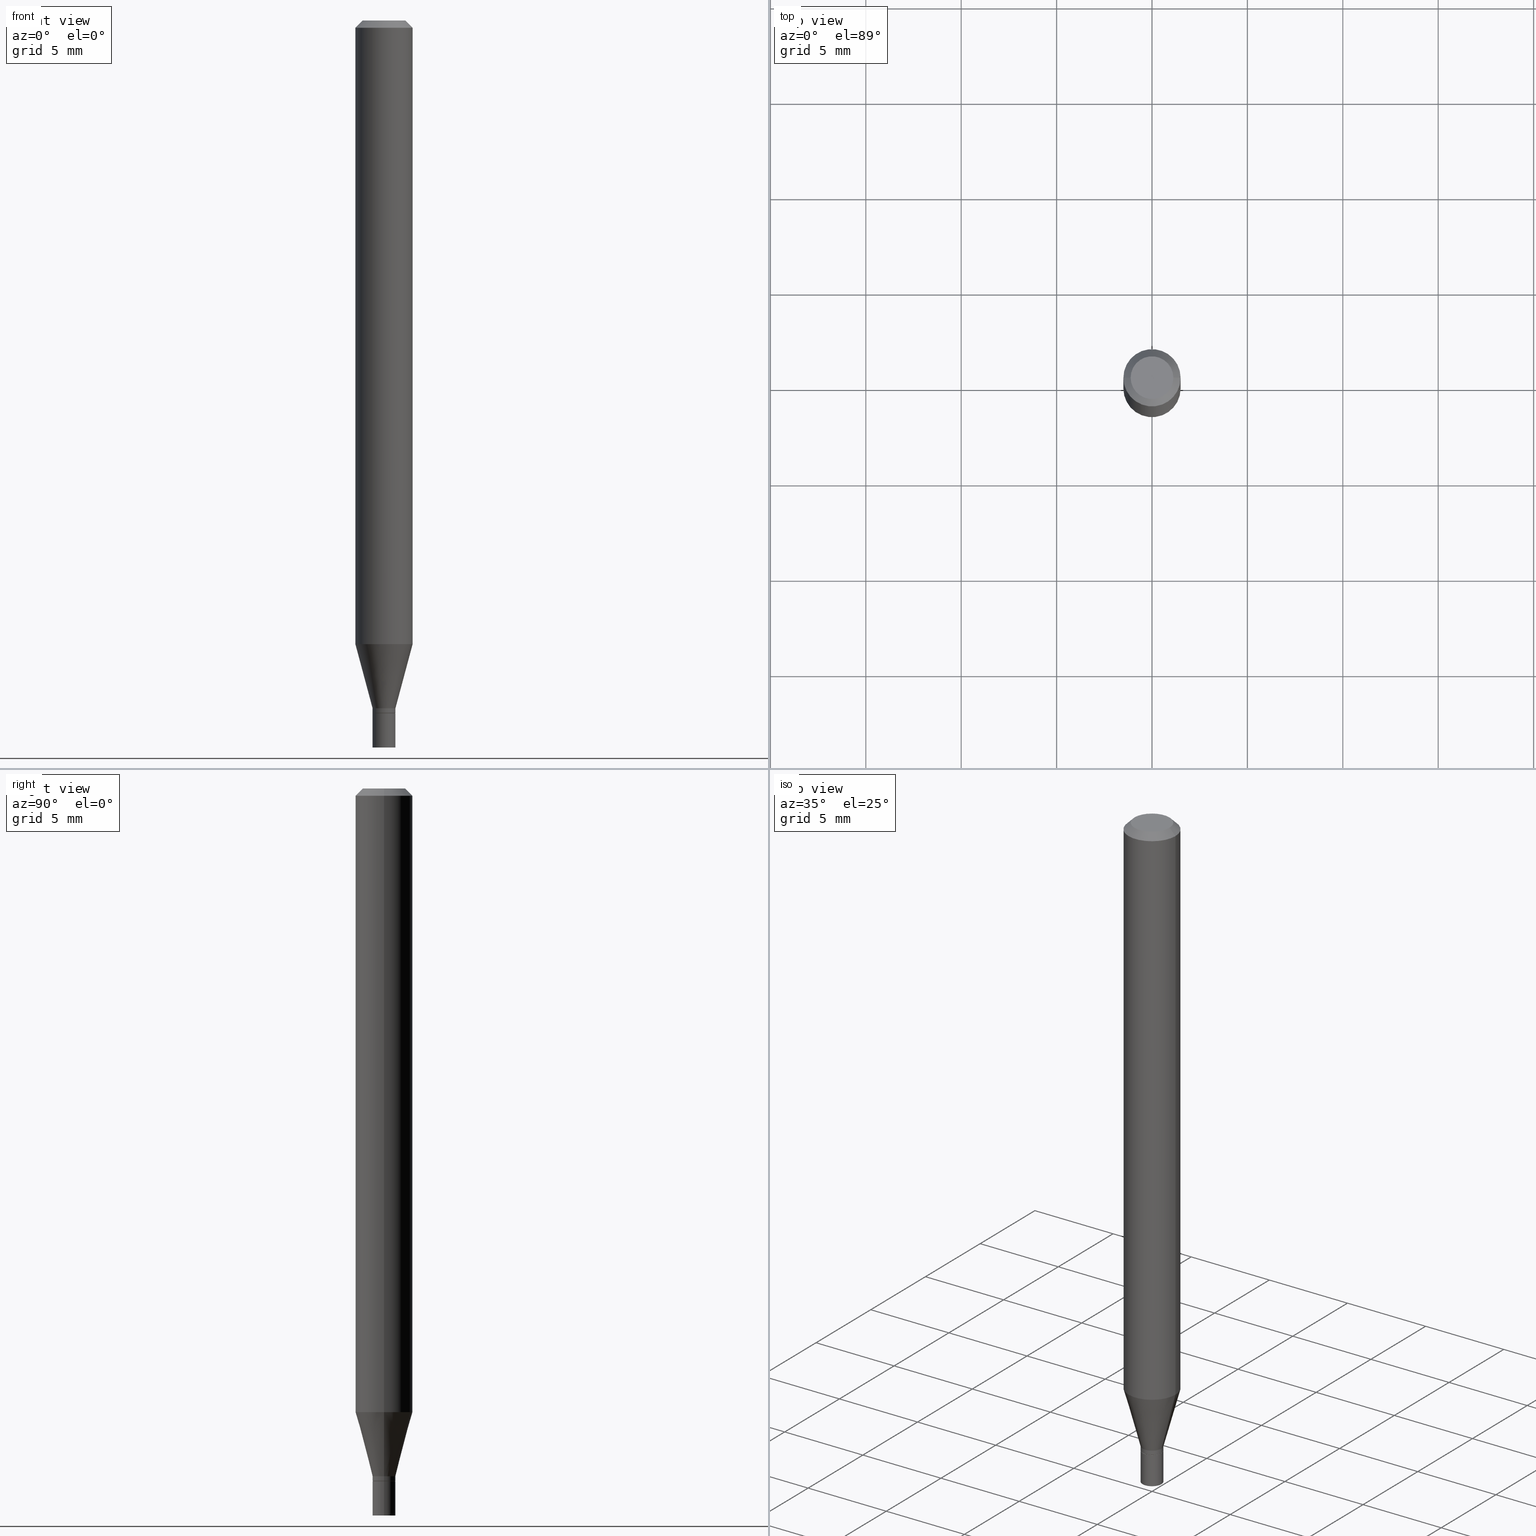
[diagram: canonical four-view strip — front | top / right | iso, engineering-drawing reading convention]
A machine part, canonical four-view strip (front | top / right | iso — engineering-drawing reading convention). The complete STEP part file that produces these views, byte-faithful:
ISO-10303-21;
HEADER;
FILE_DESCRIPTION (( 'STEP AP203' ),
    '1' );
FILE_NAME ('09283.STEP',
    '2024-03-14T18:19:20',
    ( '' ),
    ( '' ),
    'SwSTEP 2.0',
    'SolidWorks 2023',
    '' );
FILE_SCHEMA (( 'CONFIG_CONTROL_DESIGN' ));
ENDSEC;

DATA;
#1 = ORIENTED_EDGE ( 'NONE', *, *, #10, .F. ) ;
#2 = LOCAL_TIME ( 14, 19, 20.00000000000000000, #103 ) ;
#3 = CYLINDRICAL_SURFACE ( 'NONE', #246, 0.05904999999999999832 ) ;
#4 = APPROVAL_ROLE ( '' ) ;
#5 = ADVANCED_FACE ( 'NONE', ( #28 ), #382, .F. ) ;
#6 = CARTESIAN_POINT ( 'NONE',  ( 0.05904999999999999832, -4.647161662000212105E-16, -0.01499999999999999944 ) ) ;
#7 = DIRECTION ( 'NONE',  ( -2.445468806185136597E-29, 3.491481338843145583E-15, 1.000000000000000000 ) ) ;
#8 = ORIENTED_EDGE ( 'NONE', *, *, #137, .T. ) ;
#9 = DIRECTION ( 'NONE',  ( 0.2588190451025211281, 1.565188264969622954E-15, 0.9659258262890679791 ) ) ;
#10 = EDGE_CURVE ( 'NONE', #373, #110, #237, .T. ) ;
#11 = CC_DESIGN_APPROVAL ( #417, ( #275 ) ) ;
#12 = ORIENTED_EDGE ( 'NONE', *, *, #83, .T. ) ;
#13 = DIRECTION ( 'NONE',  ( 1.000000000000000000, -6.982962677686278543E-15, 0.000000000000000000 ) ) ;
#14 = ORIENTED_EDGE ( 'NONE', *, *, #348, .F. ) ;
#15 = DIRECTION ( 'NONE',  ( -1.000000000000000000, 6.982962677686266711E-15, 0.000000000000000000 ) ) ;
#16 = DIRECTION ( 'NONE',  ( 1.000000000000000000, -6.982962677686266711E-15, 4.876176775795936353E-29 ) ) ;
#17 = CARTESIAN_POINT ( 'NONE',  ( -0.04404999999999999888, 3.337856159934028715E-16, -3.279237254660510174E-16 ) ) ;
#18 = DIRECTION ( 'NONE',  ( -2.445468806185136597E-29, 3.491481338843145583E-15, 1.000000000000000000 ) ) ;
#19 = ORIENTED_EDGE ( 'NONE', *, *, #56, .T. ) ;
#20 = APPLICATION_CONTEXT ( 'configuration controlled 3d designs of mechanical parts and assemblies' ) ;
#21 = EDGE_CURVE ( 'NONE', #156, #453, #356, .T. ) ;
#22 = ORIENTED_EDGE ( 'NONE', *, *, #182, .T. ) ;
#23 = CIRCLE ( 'NONE', #357, 0.02360000000000019721 ) ;
#24 = DIRECTION ( 'NONE',  ( 1.000000000000000000, -6.982962677686267499E-15, 4.876176775795936353E-29 ) ) ;
#25 = EDGE_CURVE ( 'NONE', #373, #156, #198, .T. ) ;
#26 = DESIGN_CONTEXT ( 'detailed design', #20, 'design' ) ;
#27 = CARTESIAN_POINT ( 'NONE',  ( 0.05904999999999999832, -4.123439461173740327E-16, 2.879382386107500220E-30 ) ) ;
#28 = FACE_OUTER_BOUND ( 'NONE', #450, .T. ) ;
#29 = PLANE ( 'NONE',  #167 ) ;
#30 = ORIENTED_EDGE ( 'NONE', *, *, #87, .T. ) ;
#31 = UNCERTAINTY_MEASURE_WITH_UNIT (LENGTH_MEASURE( 1.000000000000000082E-05 ), #140, 'distance_accuracy_value', 'NONE');
#32 = DIRECTION ( 'NONE',  ( 0.7071067811865553443, -7.319954787623282867E-15, -0.7071067811865396902 ) ) ;
#33 = ORGANIZATION ( 'UNSPECIFIED', 'UNSPECIFIED', '' ) ;
#34 = CARTESIAN_POINT ( 'NONE',  ( 0.02360000000000019374, -1.647979191933972585E-16, 1.150777719087850414E-30 ) ) ;
#35 = ORIENTED_EDGE ( 'NONE', *, *, #314, .T. ) ;
#36 = DIRECTION ( 'NONE',  ( -2.445468806185136877E-29, 3.491481338843145188E-15, 1.000000000000000000 ) ) ;
#37 = DIRECTION ( 'NONE',  ( -2.445468806185136877E-29, 3.491481338843145188E-15, 1.000000000000000000 ) ) ;
#38 = DIRECTION ( 'NONE',  ( -2.445468806185136597E-29, 3.491481338843145583E-15, 1.000000000000000000 ) ) ;
#39 = CONICAL_SURFACE ( 'NONE', #274, 0.02360000000000019374, 0.2617993877991498519 ) ;
#40 = VECTOR ( 'NONE', #36, 39.37007874015748143 ) ;
#41 = PERSON_AND_ORGANIZATION_ROLE ( 'creator' ) ;
#42 = ADVANCED_FACE ( 'NONE', ( #161 ), #39, .T. ) ;
#43 = CARTESIAN_POINT ( 'NONE',  ( 0.02360000000000019374, -5.119209939011821380E-15, -1.419000000000000039 ) ) ;
#44 = APPROVAL_STATUS ( 'not_yet_approved' ) ;
#45 = DIRECTION ( 'NONE',  ( -2.445468806185136877E-29, 3.491481338843145188E-15, 1.000000000000000000 ) ) ;
#46 = APPROVAL_ROLE ( '' ) ;
#47 = CIRCLE ( 'NONE', #53, 0.04404999999999999888 ) ;
#48 = APPROVAL_PERSON_ORGANIZATION ( #211, #445, #46 ) ;
#49 = CARTESIAN_POINT ( 'NONE',  ( 0.02360000000000000292, -5.402019927458114424E-15, -1.500000000000000222 ) ) ;
#50 = ORIENTED_EDGE ( 'NONE', *, *, #427, .F. ) ;
#51 = ORIENTED_EDGE ( 'NONE', *, *, #21, .T. ) ;
#52 = DIRECTION ( 'NONE',  ( 1.000000000000000000, -6.982962677686273021E-15, 0.000000000000000000 ) ) ;
#53 = AXIS2_PLACEMENT_3D ( 'NONE', #130, #199, #284 ) ;
#54 = AXIS2_PLACEMENT_3D ( 'NONE', #374, #341, #166 ) ;
#55 = EDGE_LOOP ( 'NONE', ( #335, #304, #86, #234 ) ) ;
#56 = EDGE_CURVE ( 'NONE', #162, #405, #202, .T. ) ;
#57 = DATE_AND_TIME ( #230, #380 ) ;
#58 = MANIFOLD_SOLID_BREP ( 'Body-Move/Copy2[2]', #119 ) ;
#59 = ORIENTED_EDGE ( 'NONE', *, *, #21, .F. ) ;
#60 = VECTOR ( 'NONE', #157, 39.37007874015748143 ) ;
#61 = CARTESIAN_POINT ( 'NONE',  ( 8.019272414352406998E-45, -1.144939568028632061E-30, -3.279237254660487495E-16 ) ) ;
#62 = CIRCLE ( 'NONE', #433, 0.02309999999999999901 ) ;
#63 = FACE_OUTER_BOUND ( 'NONE', #286, .T. ) ;
#64 = FACE_OUTER_BOUND ( 'NONE', #173, .T. ) ;
#65 = EDGE_LOOP ( 'NONE', ( #263, #350, #241, #324 ) ) ;
#66 = PRODUCT_DEFINITION ( 'UNKNOWN', '', #275, #26 ) ;
#67 = DIRECTION ( 'NONE',  ( 1.000000000000000000, -6.982962677686265922E-15, 4.819687581474398999E-29 ) ) ;
#68 = EDGE_LOOP ( 'NONE', ( #35, #252, #183, #446 ) ) ;
#69 = EDGE_CURVE ( 'NONE', #421, #405, #147, .T. ) ;
#70 = PERSON_AND_ORGANIZATION_ROLE ( 'design_owner' ) ;
#71 = DIRECTION ( 'NONE',  ( -2.445468806185136597E-29, 3.491481338843145583E-15, 1.000000000000000000 ) ) ;
#72 = VECTOR ( 'NONE', #332, 39.37007874015748854 ) ;
#73 = VECTOR ( 'NONE', #106, 39.37007874015748143 ) ;
#74 = SECURITY_CLASSIFICATION_LEVEL ( 'unclassified' ) ;
#75 = CARTESIAN_POINT ( 'NONE',  ( 0.02360000000000000292, -1.647979191933959273E-16, 1.150777719087840955E-30 ) ) ;
#76 = CARTESIAN_POINT ( 'NONE',  ( 0.04404999999999999888, -3.798447818264465995E-16, -3.279237254660463336E-16 ) ) ;
#77 = EDGE_CURVE ( 'NONE', #159, #398, #294, .T. ) ;
#78 = PERSON_AND_ORGANIZATION ( #298, #33 ) ;
#79 = CARTESIAN_POINT ( 'NONE',  ( -0.05904999999999999832, 4.195754854663391478E-16, -2.904631170795521892E-30 ) ) ;
#80 = PLANE ( 'NONE',  #422 ) ;
#81 = FACE_OUTER_BOUND ( 'NONE', #68, .T. ) ;
#82 = EDGE_LOOP ( 'NONE', ( #430, #309, #308, #94 ) ) ;
#83 = EDGE_CURVE ( 'NONE', #192, #280, #312, .T. ) ;
#84 = ORIENTED_EDGE ( 'NONE', *, *, #414, .T. ) ;
#85 = DIRECTION ( 'NONE',  ( 1.000000000000000000, -6.982962677686258033E-15, 0.000000000000000000 ) ) ;
#86 = ORIENTED_EDGE ( 'NONE', *, *, #87, .F. ) ;
#87 = EDGE_CURVE ( 'NONE', #405, #421, #289, .T. ) ;
#88 = VECTOR ( 'NONE', #216, 39.37007874015748143 ) ;
#89 = CARTESIAN_POINT ( 'NONE',  ( 3.470120235976709172E-29, -4.954412019818423555E-15, -1.419000000000000039 ) ) ;
#90 = DIRECTION ( 'NONE',  ( 1.000000000000000000, -6.982962677686267499E-15, 4.876176775795936353E-29 ) ) ;
#91 = ORIENTED_EDGE ( 'NONE', *, *, #370, .F. ) ;
#92 = ADVANCED_FACE ( 'NONE', ( #402 ), #3, .T. ) ;
#93 = CARTESIAN_POINT ( 'NONE',  ( 3.668203209277704895E-29, -5.237222008264718177E-15, -1.500000000000000222 ) ) ;
#94 = ORIENTED_EDGE ( 'NONE', *, *, #83, .F. ) ;
#95 = DIRECTION ( 'NONE',  ( -2.445468806185136597E-29, 3.491481338843145583E-15, 1.000000000000000000 ) ) ;
#96 = ORIENTED_EDGE ( 'NONE', *, *, #193, .T. ) ;
#97 = CLOSED_SHELL ( 'NONE', ( #98, #5, #296, #376 ) ) ;
#98 = ADVANCED_FACE ( 'NONE', ( #81 ), #180, .T. ) ;
#99 = CARTESIAN_POINT ( 'NONE',  ( 0.000000000000000000, 0.000000000000000000, 0.000000000000000000 ) ) ;
#100 = DIRECTION ( 'NONE',  ( 1.000000000000000000, 0.000000000000000000, 0.000000000000000000 ) ) ;
#101 = ORIENTED_EDGE ( 'NONE', *, *, #77, .F. ) ;
#102 = DIRECTION ( 'NONE',  ( -2.445468806185136597E-29, 3.491481338843145583E-15, 1.000000000000000000 ) ) ;
#103 = COORDINATED_UNIVERSAL_TIME_OFFSET ( 5, 0, .BEHIND. ) ;
#104 = VECTOR ( 'NONE', #114, 39.37007874015748143 ) ;
#105 =( GEOMETRIC_REPRESENTATION_CONTEXT ( 3 ) GLOBAL_UNCERTAINTY_ASSIGNED_CONTEXT ( ( #31 ) ) GLOBAL_UNIT_ASSIGNED_CONTEXT ( ( #140, #256, #465 ) ) REPRESENTATION_CONTEXT ( 'NONE', 'WORKASPACE' ) );
#106 = DIRECTION ( 'NONE',  ( 0.7071067811865656694, -2.468850131082446387E-15, 0.7071067811865294761 ) ) ;
#107 = APPROVAL_STATUS ( 'not_yet_approved' ) ;
#108 = DIRECTION ( 'NONE',  ( 1.000000000000000000, -6.982962677686278543E-15, 0.000000000000000000 ) ) ;
#109 = CALENDAR_DATE ( 2024, 14, 3 ) ;
#110 = VERTEX_POINT ( 'NONE', #17 ) ;
#111 = CC_DESIGN_PERSON_AND_ORGANIZATION_ASSIGNMENT ( #288, #41, ( #275 ) ) ;
#112 = CARTESIAN_POINT ( 'NONE',  ( 0.02360000000000019374, -5.119209939011821380E-15, -1.419000000000000039 ) ) ;
#113 = AXIS2_PLACEMENT_3D ( 'NONE', #99, #170, #100 ) ;
#114 = DIRECTION ( 'NONE',  ( -2.445468806185136877E-29, 3.491481338843145188E-15, 1.000000000000000000 ) ) ;
#115 = ORIENTED_EDGE ( 'NONE', *, *, #193, .F. ) ;
#116 = CARTESIAN_POINT ( 'NONE',  ( 3.668203209277705088E-31, -5.237222008264718399E-17, -0.01499999999999999944 ) ) ;
#117 = APPLICATION_CONTEXT ( 'configuration controlled 3d designs of mechanical parts and assemblies' ) ;
#118 = ORIENTED_EDGE ( 'NONE', *, *, #10, .T. ) ;
#119 = CLOSED_SHELL ( 'NONE', ( #228, #267, #239, #92, #325, #42, #128, #247, #248, #217, #189, #435 ) ) ;
#120 = VECTOR ( 'NONE', #277, 39.37007874015748143 ) ;
#121 = CYLINDRICAL_SURFACE ( 'NONE', #349, 0.02360000000000019374 ) ;
#122 = DIRECTION ( 'NONE',  ( 2.445468806185136597E-29, -3.491481338843145583E-15, -1.000000000000000000 ) ) ;
#123 = CYLINDRICAL_SURFACE ( 'NONE', #134, 0.05904999999999999832 ) ;
#124 = DIRECTION ( 'NONE',  ( -2.445468806185136597E-29, 3.491481338843145583E-15, 1.000000000000000000 ) ) ;
#125 = ORIENTED_EDGE ( 'NONE', *, *, #273, .F. ) ;
#126 = DIRECTION ( 'NONE',  ( 1.000000000000000000, -6.982962677686278543E-15, 0.000000000000000000 ) ) ;
#127 = DIRECTION ( 'NONE',  ( -1.000000000000000000, 6.982962677686266711E-15, 0.000000000000000000 ) ) ;
#128 = ADVANCED_FACE ( 'NONE', ( #152 ), #123, .T. ) ;
#129 = AXIS2_PLACEMENT_3D ( 'NONE', #460, #408, #334 ) ;
#130 = CARTESIAN_POINT ( 'NONE',  ( 8.019272414352406998E-45, -1.144939568028632061E-30, -3.279237254660487495E-16 ) ) ;
#131 = PRODUCT_RELATED_PRODUCT_CATEGORY ( 'detail', '', ( #362 ) ) ;
#132 = ORIENTED_EDGE ( 'NONE', *, *, #318, .F. ) ;
#133 = DIRECTION ( 'NONE',  ( -2.445468806185136597E-29, 3.491481338843145583E-15, 1.000000000000000000 ) ) ;
#134 = AXIS2_PLACEMENT_3D ( 'NONE', #423, #340, #16 ) ;
#135 = EDGE_CURVE ( 'NONE', #110, #373, #47, .T. ) ;
#136 = APPROVAL_DATE_TIME ( #164, #445 ) ;
#137 = EDGE_CURVE ( 'NONE', #192, #453, #457, .T. ) ;
#138 = EDGE_LOOP ( 'NONE', ( #132, #84, #279, #50 ) ) ;
#139 = CC_DESIGN_APPROVAL ( #212, ( #175 ) ) ;
#140 =( CONVERSION_BASED_UNIT ( 'INCH', #434 ) LENGTH_UNIT ( ) NAMED_UNIT ( #333 ) );
#141 = CARTESIAN_POINT ( 'NONE',  ( 3.494819470919178941E-29, -4.989675981340739504E-15, -1.429100000000000037 ) ) ;
#142 = EDGE_CURVE ( 'NONE', #421, #192, #436, .T. ) ;
#143 = DIRECTION ( 'NONE',  ( -2.445468806185136597E-29, 3.491481338843145583E-15, 1.000000000000000000 ) ) ;
#144 = DIRECTION ( 'NONE',  ( -1.000000000000000000, 6.982962677686265922E-15, -4.876176775795935793E-29 ) ) ;
#145 = DIRECTION ( 'NONE',  ( 1.000000000000000000, -6.982962677686284065E-15, 0.000000000000000000 ) ) ;
#146 = CARTESIAN_POINT ( 'NONE',  ( -0.05904999999999999832, -4.072909359506036864E-15, -1.286698798871684257 ) ) ;
#147 = CIRCLE ( 'NONE', #208, 0.02360000000000019374 ) ;
#148 = AXIS2_PLACEMENT_3D ( 'NONE', #390, #18, #197 ) ;
#149 = CC_DESIGN_PERSON_AND_ORGANIZATION_ASSIGNMENT ( #285, #176, ( #66 ) ) ;
#150 = VERTEX_POINT ( 'NONE', #49 ) ;
#151 = CYLINDRICAL_SURFACE ( 'NONE', #54, 0.02360000000000000292 ) ;
#152 = FACE_OUTER_BOUND ( 'NONE', #345, .T. ) ;
#153 = ORIENTED_EDGE ( 'NONE', *, *, #314, .F. ) ;
#154 = VECTOR ( 'NONE', #37, 39.37007874015748143 ) ;
#155 = CONICAL_SURFACE ( 'NONE', #160, 0.02360000000000019374, 0.2617993877991498519 ) ;
#156 = VERTEX_POINT ( 'NONE', #6 ) ;
#157 = DIRECTION ( 'NONE',  ( -2.445468806185136877E-29, 3.491481338843145188E-15, 1.000000000000000000 ) ) ;
#158 = CARTESIAN_POINT ( 'NONE',  ( 3.668203209277705088E-31, -5.237222008264718399E-17, -0.01499999999999999944 ) ) ;
#159 = VERTEX_POINT ( 'NONE', #259 ) ;
#160 = AXIS2_PLACEMENT_3D ( 'NONE', #346, #315, #282 ) ;
#161 = FACE_OUTER_BOUND ( 'NONE', #82, .T. ) ;
#162 = VERTEX_POINT ( 'NONE', #219 ) ;
#163 = ORIENTED_EDGE ( 'NONE', *, *, #443, .T. ) ;
#164 = DATE_AND_TIME ( #320, #2 ) ;
#165 = EDGE_CURVE ( 'NONE', #162, #287, #168, .T. ) ;
#166 = DIRECTION ( 'NONE',  ( 1.000000000000000000, -6.982962677686267499E-15, 4.876176775795935793E-29 ) ) ;
#167 = AXIS2_PLACEMENT_3D ( 'NONE', #444, #399, #144 ) ;
#168 = CIRCLE ( 'NONE', #401, 0.02360000000000019721 ) ;
#169 = VECTOR ( 'NONE', #171, 39.37007874015748143 ) ;
#170 = DIRECTION ( 'NONE',  ( 0.000000000000000000, 0.000000000000000000, 1.000000000000000000 ) ) ;
#171 = DIRECTION ( 'NONE',  ( -0.7071067811865553443, 2.468850131082339102E-15, -0.7071067811865396902 ) ) ;
#172 = DIRECTION ( 'NONE',  ( 1.000000000000000000, -6.982962677686266711E-15, 4.876176775795936353E-29 ) ) ;
#173 = EDGE_LOOP ( 'NONE', ( #30, #448, #115, #14 ) ) ;
#174 = PERSON_AND_ORGANIZATION_ROLE ( 'classification_officer' ) ;
#175 = SECURITY_CLASSIFICATION ( '', '', #74 ) ;
#176 = PERSON_AND_ORGANIZATION_ROLE ( 'creator' ) ;
#177 = CARTESIAN_POINT ( 'NONE',  ( -0.02360000000000019374, -4.786723934179038657E-15, -1.419000000000000039 ) ) ;
#178 = CARTESIAN_POINT ( 'NONE',  ( 3.493596736516086700E-29, -4.987930240671318790E-15, -1.428600000000000092 ) ) ;
#179 = CC_DESIGN_DATE_AND_TIME_ASSIGNMENT ( #258, #413, ( #175 ) ) ;
#180 = CYLINDRICAL_SURFACE ( 'NONE', #342, 0.02360000000000000292 ) ;
#181 = ORIENTED_EDGE ( 'NONE', *, *, #370, .T. ) ;
#182 = EDGE_CURVE ( 'NONE', #456, #398, #462, .T. ) ;
#183 = ORIENTED_EDGE ( 'NONE', *, *, #182, .F. ) ;
#184 = CC_DESIGN_PERSON_AND_ORGANIZATION_ASSIGNMENT ( #253, #393, ( #275 ) ) ;
#185 = CIRCLE ( 'NONE', #266, 0.05904999999999999832 ) ;
#186 = AXIS2_PLACEMENT_3D ( 'NONE', #326, #385, #363 ) ;
#187 = CARTESIAN_POINT ( 'NONE',  ( 3.494819470919178941E-29, -4.989675981340741082E-15, -1.429100000000000259 ) ) ;
#188 = ORIENTED_EDGE ( 'NONE', *, *, #318, .T. ) ;
#189 = ADVANCED_FACE ( 'NONE', ( #301 ), #229, .T. ) ;
#190 = SHAPE_DEFINITION_REPRESENTATION ( #411, #447 ) ;
#191 = AXIS2_PLACEMENT_3D ( 'NONE', #311, #455, #316 ) ;
#192 = VERTEX_POINT ( 'NONE', #146 ) ;
#193 = EDGE_CURVE ( 'NONE', #280, #192, #185, .T. ) ;
#194 = ORIENTED_EDGE ( 'NONE', *, *, #244, .F. ) ;
#195 = CARTESIAN_POINT ( 'NONE',  ( 0.02309999999999999901, -5.150982419195293534E-15, -1.429100000000000259 ) ) ;
#196 = DIRECTION ( 'NONE',  ( 1.000000000000000000, -6.982962677686282488E-15, 0.000000000000000000 ) ) ;
#197 = DIRECTION ( 'NONE',  ( 1.000000000000000000, -6.982962677686258033E-15, 0.000000000000000000 ) ) ;
#198 = LINE ( 'NONE', #347, #364 ) ;
#199 = DIRECTION ( 'NONE',  ( -2.445468806185136597E-29, 3.491481338843145583E-15, 1.000000000000000000 ) ) ;
#200 = AXIS2_PLACEMENT_3D ( 'NONE', #158, #235, #127 ) ;
#201 = APPROVAL_PERSON_ORGANIZATION ( #331, #417, #4 ) ;
#202 = LINE ( 'NONE', #34, #104 ) ;
#203 = DIRECTION ( 'NONE',  ( 1.000000000000000000, -6.982962677686258033E-15, 0.000000000000000000 ) ) ;
#204 = CARTESIAN_POINT ( 'NONE',  ( 3.494819470919178941E-29, -4.989675981340741082E-15, -1.429100000000000259 ) ) ;
#205 = ORIENTED_EDGE ( 'NONE', *, *, #438, .T. ) ;
#206 = CARTESIAN_POINT ( 'NONE',  ( -0.02360000000000000292, -4.945760909163345127E-15, -1.429100000000000037 ) ) ;
#207 = MECHANICAL_CONTEXT ( 'NONE', #117, 'mechanical' ) ;
#208 = AXIS2_PLACEMENT_3D ( 'NONE', #392, #7, #145 ) ;
#209 = APPROVAL_PERSON_ORGANIZATION ( #78, #212, #262 ) ;
#210 = DIRECTION ( 'NONE',  ( 1.000000000000000000, -6.982962677686266711E-15, 0.000000000000000000 ) ) ;
#211 = PERSON_AND_ORGANIZATION ( #298, #33 ) ;
#212 = APPROVAL ( #368, 'UNSPECIFIED' ) ;
#213 = CARTESIAN_POINT ( 'NONE',  ( 3.494819470919178941E-29, -4.989675981340741082E-15, -1.429100000000000259 ) ) ;
#214 = DIRECTION ( 'NONE',  ( 1.000000000000000000, -6.982962677686282488E-15, 0.000000000000000000 ) ) ;
#215 = CARTESIAN_POINT ( 'NONE',  ( 0.02360000000000000292, -5.154473900534135752E-15, -1.429100000000000037 ) ) ;
#216 = DIRECTION ( 'NONE',  ( -2.445468806185136877E-29, 3.491481338843145188E-15, 1.000000000000000000 ) ) ;
#217 = ADVANCED_FACE ( 'NONE', ( #441 ), #223, .F. ) ;
#218 = VECTOR ( 'NONE', #45, 39.37007874015748143 ) ;
#219 = CARTESIAN_POINT ( 'NONE',  ( 0.02360000000000019721, -5.152728159864715826E-15, -1.428600000000000092 ) ) ;
#220 = DIRECTION ( 'NONE',  ( 1.000000000000000000, -6.982962677686267499E-15, 4.876176775795935793E-29 ) ) ;
#221 = EDGE_LOOP ( 'NONE', ( #22, #163 ) ) ;
#222 = FACE_OUTER_BOUND ( 'NONE', #378, .T. ) ;
#223 = PLANE ( 'NONE',  #254 ) ;
#224 = CARTESIAN_POINT ( 'NONE',  ( 0.05904999999999999832, -4.904828791089749700E-15, -1.286698798871684257 ) ) ;
#225 = CARTESIAN_POINT ( 'NONE',  ( 1.647979191934308344E-16, 0.02359999999999501039, -1.429100000000000037 ) ) ;
#226 = DIRECTION ( 'NONE',  ( -2.445468806185136597E-29, 3.491481338843145583E-15, 1.000000000000000000 ) ) ;
#227 = ORIENTED_EDGE ( 'NONE', *, *, #388, .T. ) ;
#228 = ADVANCED_FACE ( 'NONE', ( #307 ), #121, .T. ) ;
#229 = CONICAL_SURFACE ( 'NONE', #129, 0.02309999999999999901, 0.7853981633974739252 ) ;
#230 = CALENDAR_DATE ( 2024, 14, 3 ) ;
#231 = CIRCLE ( 'NONE', #329, 0.02309999999999999901 ) ;
#232 = EDGE_LOOP ( 'NONE', ( #96, #8, #59, #381 ) ) ;
#233 = LINE ( 'NONE', #195, #73 ) ;
#234 = ORIENTED_EDGE ( 'NONE', *, *, #56, .F. ) ;
#235 = DIRECTION ( 'NONE',  ( 2.445468806185136597E-29, -3.491481338843145583E-15, -1.000000000000000000 ) ) ;
#236 = CC_DESIGN_DATE_AND_TIME_ASSIGNMENT ( #429, #397, ( #66 ) ) ;
#237 = CIRCLE ( 'NONE', #384, 0.04404999999999999888 ) ;
#238 = AXIS2_PLACEMENT_3D ( 'NONE', #319, #38, #24 ) ;
#239 = ADVANCED_FACE ( 'NONE', ( #452 ), #260, .T. ) ;
#240 = DIRECTION ( 'NONE',  ( -1.000000000000000000, 6.982962677686265922E-15, -4.876176775795935793E-29 ) ) ;
#241 = ORIENTED_EDGE ( 'NONE', *, *, #330, .T. ) ;
#242 = CC_DESIGN_PERSON_AND_ORGANIZATION_ASSIGNMENT ( #464, #70, ( #362 ) ) ;
#243 = FACE_OUTER_BOUND ( 'NONE', #283, .T. ) ;
#244 = EDGE_CURVE ( 'NONE', #287, #421, #303, .T. ) ;
#245 = CARTESIAN_POINT ( 'NONE',  ( 3.668203209277705088E-31, -5.237222008264718399E-17, -0.01499999999999999944 ) ) ;
#246 = AXIS2_PLACEMENT_3D ( 'NONE', #255, #291, #172 ) ;
#247 = ADVANCED_FACE ( 'NONE', ( #270 ), #379, .T. ) ;
#248 = ADVANCED_FACE ( 'NONE', ( #63 ), #29, .F. ) ;
#249 = DATE_AND_TIME ( #281, #463 ) ;
#250 = LINE ( 'NONE', #251, #169 ) ;
#251 = CARTESIAN_POINT ( 'NONE',  ( -0.05904999999999999832, 3.599717260347268549E-16, -0.01499999999999999944 ) ) ;
#252 = ORIENTED_EDGE ( 'NONE', *, *, #77, .T. ) ;
#253 = PERSON_AND_ORGANIZATION ( #298, #33 ) ;
#254 = AXIS2_PLACEMENT_3D ( 'NONE', #187, #372, #449 ) ;
#255 = CARTESIAN_POINT ( 'NONE',  ( 0.000000000000000000, 0.000000000000000000, 0.000000000000000000 ) ) ;
#256 =( NAMED_UNIT ( * ) PLANE_ANGLE_UNIT ( ) SI_UNIT ( $, .RADIAN. ) );
#257 = ORIENTED_EDGE ( 'NONE', *, *, #137, .F. ) ;
#258 = DATE_AND_TIME ( #400, #451 ) ;
#259 = CARTESIAN_POINT ( 'NONE',  ( -0.02360000000000000292, -4.945760909163345127E-15, -1.500000000000000222 ) ) ;
#260 = CONICAL_SURFACE ( 'NONE', #321, 0.05904999999999999832, 0.7853981633974593812 ) ;
#261 = CIRCLE ( 'NONE', #337, 0.05904999999999999832 ) ;
#262 = APPROVAL_ROLE ( '' ) ;
#263 = ORIENTED_EDGE ( 'NONE', *, *, #25, .F. ) ;
#264 = FACE_OUTER_BOUND ( 'NONE', #271, .T. ) ;
#265 = VERTEX_POINT ( 'NONE', #439 ) ;
#266 = AXIS2_PLACEMENT_3D ( 'NONE', #377, #124, #295 ) ;
#267 = ADVANCED_FACE ( 'NONE', ( #222 ), #366, .T. ) ;
#268 = CARTESIAN_POINT ( 'NONE',  ( 0.000000000000000000, 0.000000000000000000, 0.000000000000000000 ) ) ;
#269 = ORIENTED_EDGE ( 'NONE', *, *, #427, .T. ) ;
#270 = FACE_OUTER_BOUND ( 'NONE', #65, .T. ) ;
#271 = EDGE_LOOP ( 'NONE', ( #101, #205, #292, #410 ) ) ;
#272 = DIRECTION ( 'NONE',  ( -2.445468806185136597E-29, 3.491481338843145583E-15, 1.000000000000000000 ) ) ;
#273 = EDGE_CURVE ( 'NONE', #265, #162, #233, .T. ) ;
#274 = AXIS2_PLACEMENT_3D ( 'NONE', #424, #95, #383 ) ;
#275 = PRODUCT_DEFINITION_FORMATION_WITH_SPECIFIED_SOURCE ( 'ANY', '', #362, .NOT_KNOWN. ) ;
#276 = DIRECTION ( 'NONE',  ( -2.445468806185136597E-29, 3.491481338843145583E-15, 1.000000000000000000 ) ) ;
#277 = DIRECTION ( 'NONE',  ( -0.7071067811865656694, 7.493145998870420424E-15, 0.7071067811865294761 ) ) ;
#278 = DIRECTION ( 'NONE',  ( -2.445468806185136597E-29, 3.491481338843145583E-15, 1.000000000000000000 ) ) ;
#279 = ORIENTED_EDGE ( 'NONE', *, *, #273, .T. ) ;
#280 = VERTEX_POINT ( 'NONE', #224 ) ;
#281 = CALENDAR_DATE ( 2024, 14, 3 ) ;
#282 = DIRECTION ( 'NONE',  ( 1.000000000000000000, -6.982962677686284065E-15, 0.000000000000000000 ) ) ;
#283 = EDGE_LOOP ( 'NONE', ( #194, #269, #19, #387 ) ) ;
#284 = DIRECTION ( 'NONE',  ( 1.000000000000000000, -6.982962677686265922E-15, 4.819687581474398999E-29 ) ) ;
#285 = PERSON_AND_ORGANIZATION ( #298, #33 ) ;
#286 = EDGE_LOOP ( 'NONE', ( #302, #118 ) ) ;
#287 = VERTEX_POINT ( 'NONE', #300 ) ;
#288 = PERSON_AND_ORGANIZATION ( #298, #33 ) ;
#289 = CIRCLE ( 'NONE', #336, 0.02360000000000019374 ) ;
#290 = APPLICATION_PROTOCOL_DEFINITION ( 'international standard', 'config_control_design', 1994, #20 ) ;
#291 = DIRECTION ( 'NONE',  ( -2.445468806185136597E-29, 3.491481338843145583E-15, 1.000000000000000000 ) ) ;
#292 = ORIENTED_EDGE ( 'NONE', *, *, #459, .T. ) ;
#293 = DIRECTION ( 'NONE',  ( -2.445468806185136597E-29, 3.491481338843145583E-15, 1.000000000000000000 ) ) ;
#294 = LINE ( 'NONE', #407, #154 ) ;
#295 = DIRECTION ( 'NONE',  ( 1.000000000000000000, -6.982962677686273021E-15, 0.000000000000000000 ) ) ;
#296 = ADVANCED_FACE ( 'NONE', ( #264 ), #151, .T. ) ;
#297 = AXIS2_PLACEMENT_3D ( 'NONE', #343, #458, #454 ) ;
#298 = PERSON ( 'UNSPECIFIED', 'UNSPECIFIED', 'UNSPECIFIED', ('UNSPECIFIED'), ('UNSPECIFIED'), ('UNSPECIFIED') ) ;
#299 = ORIENTED_EDGE ( 'NONE', *, *, #25, .T. ) ;
#300 = CARTESIAN_POINT ( 'NONE',  ( -0.02360000000000019721, -4.820242155031933892E-15, -1.428600000000000092 ) ) ;
#301 = FACE_OUTER_BOUND ( 'NONE', #138, .T. ) ;
#302 = ORIENTED_EDGE ( 'NONE', *, *, #135, .T. ) ;
#303 = LINE ( 'NONE', #305, #60 ) ;
#304 = ORIENTED_EDGE ( 'NONE', *, *, #244, .T. ) ;
#305 = CARTESIAN_POINT ( 'NONE',  ( -0.02360000000000019374, 1.676880856393850205E-16, -1.160868681300167262E-30 ) ) ;
#306 = CIRCLE ( 'NONE', #148, 0.02360000000000000292 ) ;
#307 = FACE_OUTER_BOUND ( 'NONE', #55, .T. ) ;
#308 = ORIENTED_EDGE ( 'NONE', *, *, #348, .T. ) ;
#309 = ORIENTED_EDGE ( 'NONE', *, *, #69, .T. ) ;
#310 = DIRECTION ( 'NONE',  ( -2.445468806185136597E-29, 3.491481338843145583E-15, 1.000000000000000000 ) ) ;
#311 = CARTESIAN_POINT ( 'NONE',  ( 3.576687321579069994E-29, -5.368277968210015545E-15, -1.500000000000000222 ) ) ;
#312 = CIRCLE ( 'NONE', #394, 0.05904999999999999832 ) ;
#313 = CIRCLE ( 'NONE', #186, 0.02360000000000000292 ) ;
#314 = EDGE_CURVE ( 'NONE', #150, #159, #306, .T. ) ;
#315 = DIRECTION ( 'NONE',  ( -2.445468806185136597E-29, 3.491481338843145583E-15, 1.000000000000000000 ) ) ;
#316 = DIRECTION ( 'NONE',  ( 1.000000000000000000, -6.982962677686265922E-15, 4.876176775795935793E-29 ) ) ;
#317 = CARTESIAN_POINT ( 'NONE',  ( -0.02309999999999999901, -4.822891382206045093E-15, -1.429100000000000259 ) ) ;
#318 = EDGE_CURVE ( 'NONE', #369, #287, #420, .T. ) ;
#319 = CARTESIAN_POINT ( 'NONE',  ( 0.000000000000000000, 0.000000000000000000, 0.000000000000000000 ) ) ;
#320 = CALENDAR_DATE ( 2024, 14, 3 ) ;
#321 = AXIS2_PLACEMENT_3D ( 'NONE', #116, #122, #15 ) ;
#322 = AXIS2_PLACEMENT_3D ( 'NONE', #344, #310, #126 ) ;
#323 =( LENGTH_UNIT ( ) NAMED_UNIT ( * ) SI_UNIT ( $, .METRE. ) );
#324 = ORIENTED_EDGE ( 'NONE', *, *, #351, .T. ) ;
#325 = ADVANCED_FACE ( 'NONE', ( #64 ), #155, .T. ) ;
#326 = CARTESIAN_POINT ( 'NONE',  ( 3.494819470919178941E-29, -4.989675981340739504E-15, -1.429100000000000037 ) ) ;
#327 = DIRECTION ( 'NONE',  ( 1.000000000000000000, -6.982962677686284065E-15, 0.000000000000000000 ) ) ;
#328 = CARTESIAN_POINT ( 'NONE',  ( -0.05904999999999999832, -1.852853047061172422E-15, -0.01499999999999999944 ) ) ;
#329 = AXIS2_PLACEMENT_3D ( 'NONE', #213, #360, #108 ) ;
#330 = EDGE_CURVE ( 'NONE', #110, #453, #250, .T. ) ;
#331 = PERSON_AND_ORGANIZATION ( #298, #33 ) ;
#332 = DIRECTION ( 'NONE',  ( -0.2588190451025211281, 5.211531920934547886E-15, 0.9659258262890679791 ) ) ;
#333 = DIMENSIONAL_EXPONENTS ( 1.000000000000000000, 0.000000000000000000, 0.000000000000000000, 0.000000000000000000, 0.000000000000000000, 0.000000000000000000, 0.000000000000000000 ) ;
#334 = DIRECTION ( 'NONE',  ( 1.000000000000000000, -6.982962677686278543E-15, 0.000000000000000000 ) ) ;
#335 = ORIENTED_EDGE ( 'NONE', *, *, #165, .T. ) ;
#336 = AXIS2_PLACEMENT_3D ( 'NONE', #89, #361, #327 ) ;
#337 = AXIS2_PLACEMENT_3D ( 'NONE', #245, #102, #210 ) ;
#338 = APPROVAL_DATE_TIME ( #57, #212 ) ;
#339 = EDGE_LOOP ( 'NONE', ( #1, #299, #51, #412 ) ) ;
#340 = DIRECTION ( 'NONE',  ( -2.445468806185136597E-29, 3.491481338843145583E-15, 1.000000000000000000 ) ) ;
#341 = DIRECTION ( 'NONE',  ( -2.445468806185136597E-29, 3.491481338843145583E-15, 1.000000000000000000 ) ) ;
#342 = AXIS2_PLACEMENT_3D ( 'NONE', #365, #143, #220 ) ;
#343 = CARTESIAN_POINT ( 'NONE',  ( 3.668203209277705088E-31, -5.237222008264718399E-17, -0.01499999999999999944 ) ) ;
#344 = CARTESIAN_POINT ( 'NONE',  ( 3.494819470919178941E-29, -4.989675981340741082E-15, -1.429100000000000259 ) ) ;
#345 = EDGE_LOOP ( 'NONE', ( #257, #12, #227, #404 ) ) ;
#346 = CARTESIAN_POINT ( 'NONE',  ( 3.470120235976709172E-29, -4.954412019818423555E-15, -1.419000000000000039 ) ) ;
#347 = CARTESIAN_POINT ( 'NONE',  ( 0.05904999999999999832, -4.574846268510561447E-16, -0.01499999999999999944 ) ) ;
#348 = EDGE_CURVE ( 'NONE', #405, #280, #466, .T. ) ;
#349 = AXIS2_PLACEMENT_3D ( 'NONE', #268, #415, #90 ) ;
#350 = ORIENTED_EDGE ( 'NONE', *, *, #135, .F. ) ;
#351 = EDGE_CURVE ( 'NONE', #453, #156, #261, .T. ) ;
#352 = CARTESIAN_POINT ( 'NONE',  ( 3.493596736516086700E-29, -4.987930240671318790E-15, -1.428600000000000092 ) ) ;
#353 = CARTESIAN_POINT ( 'NONE',  ( -0.02360000000000019374, -4.429816646842537366E-15, -1.419000000000000039 ) ) ;
#354 = APPLICATION_PROTOCOL_DEFINITION ( 'international standard', 'config_control_design', 1994, #117 ) ;
#355 = APPROVAL_DATE_TIME ( #249, #417 ) ;
#356 = CIRCLE ( 'NONE', #297, 0.05904999999999999832 ) ;
#357 = AXIS2_PLACEMENT_3D ( 'NONE', #352, #133, #196 ) ;
#358 = PERSON_AND_ORGANIZATION ( #298, #33 ) ;
#359 = MANIFOLD_SOLID_BREP ( 'Body-Move/Copy2[1]', #97 ) ;
#360 = DIRECTION ( 'NONE',  ( -2.445468806185136597E-29, 3.491481338843145583E-15, 1.000000000000000000 ) ) ;
#361 = DIRECTION ( 'NONE',  ( -2.445468806185136597E-29, 3.491481338843145583E-15, 1.000000000000000000 ) ) ;
#362 = PRODUCT ( '09283', '09283', '', ( #207 ) ) ;
#363 = DIRECTION ( 'NONE',  ( 1.000000000000000000, -6.982962677686258033E-15, 0.000000000000000000 ) ) ;
#364 = VECTOR ( 'NONE', #32, 39.37007874015748143 ) ;
#365 = CARTESIAN_POINT ( 'NONE',  ( 0.000000000000000000, 0.000000000000000000, 0.000000000000000000 ) ) ;
#366 = CONICAL_SURFACE ( 'NONE', #322, 0.02309999999999999901, 0.7853981633974739252 ) ;
#367 = EDGE_LOOP ( 'NONE', ( #91, #425 ) ) ;
#368 = APPROVAL_STATUS ( 'not_yet_approved' ) ;
#369 = VERTEX_POINT ( 'NONE', #317 ) ;
#370 = EDGE_CURVE ( 'NONE', #265, #369, #62, .T. ) ;
#371 = CC_DESIGN_APPROVAL ( #445, ( #66 ) ) ;
#372 = DIRECTION ( 'NONE',  ( -2.438088387897960049E-29, 3.491481338843145188E-15, 1.000000000000000000 ) ) ;
#373 = VERTEX_POINT ( 'NONE', #76 ) ;
#374 = CARTESIAN_POINT ( 'NONE',  ( 0.000000000000000000, 0.000000000000000000, 0.000000000000000000 ) ) ;
#375 = DIRECTION ( 'NONE',  ( 2.438088387897960049E-29, -3.491481338843145188E-15, -1.000000000000000000 ) ) ;
#376 = ADVANCED_FACE ( 'NONE', ( #437 ), #80, .F. ) ;
#377 = CARTESIAN_POINT ( 'NONE',  ( 3.146581775596586990E-29, -4.492484844972376357E-15, -1.286698798871684257 ) ) ;
#378 = EDGE_LOOP ( 'NONE', ( #181, #188, #461, #125 ) ) ;
#379 = CONICAL_SURFACE ( 'NONE', #200, 0.05904999999999999832, 0.7853981633974593812 ) ;
#380 = LOCAL_TIME ( 14, 19, 20.00000000000000000, #406 ) ;
#381 = ORIENTED_EDGE ( 'NONE', *, *, #388, .F. ) ;
#382 = PLANE ( 'NONE',  #191 ) ;
#383 = DIRECTION ( 'NONE',  ( 1.000000000000000000, -6.982962677686284065E-15, 0.000000000000000000 ) ) ;
#384 = AXIS2_PLACEMENT_3D ( 'NONE', #61, #278, #67 ) ;
#385 = DIRECTION ( 'NONE',  ( -2.445468806185136597E-29, 3.491481338843145583E-15, 1.000000000000000000 ) ) ;
#386 = LOCAL_TIME ( 14, 19, 20.00000000000000000, #389 ) ;
#387 = ORIENTED_EDGE ( 'NONE', *, *, #69, .F. ) ;
#388 = EDGE_CURVE ( 'NONE', #280, #156, #416, .T. ) ;
#389 = COORDINATED_UNIVERSAL_TIME_OFFSET ( 5, 0, .BEHIND. ) ;
#390 = CARTESIAN_POINT ( 'NONE',  ( 3.668203209277704895E-29, -5.237222008264718177E-15, -1.500000000000000222 ) ) ;
#391 = COORDINATED_UNIVERSAL_TIME_OFFSET ( 5, 0, .BEHIND. ) ;
#392 = CARTESIAN_POINT ( 'NONE',  ( 3.470120235976709172E-29, -4.954412019818423555E-15, -1.419000000000000039 ) ) ;
#393 = PERSON_AND_ORGANIZATION_ROLE ( 'design_supplier' ) ;
#394 = AXIS2_PLACEMENT_3D ( 'NONE', #440, #226, #52 ) ;
#395 = CIRCLE ( 'NONE', #403, 0.02360000000000000292 ) ;
#396 = LINE ( 'NONE', #75, #40 ) ;
#397 = DATE_TIME_ROLE ( 'creation_date' ) ;
#398 = VERTEX_POINT ( 'NONE', #206 ) ;
#399 = DIRECTION ( 'NONE',  ( 2.438088387897960049E-29, -3.491481338843145188E-15, -1.000000000000000000 ) ) ;
#400 = CALENDAR_DATE ( 2024, 14, 3 ) ;
#401 = AXIS2_PLACEMENT_3D ( 'NONE', #178, #293, #214 ) ;
#402 = FACE_OUTER_BOUND ( 'NONE', #232, .T. ) ;
#403 = AXIS2_PLACEMENT_3D ( 'NONE', #93, #272, #203 ) ;
#404 = ORIENTED_EDGE ( 'NONE', *, *, #351, .F. ) ;
#405 = VERTEX_POINT ( 'NONE', #43 ) ;
#406 = COORDINATED_UNIVERSAL_TIME_OFFSET ( 5, 0, .BEHIND. ) ;
#407 = CARTESIAN_POINT ( 'NONE',  ( -0.02360000000000000292, 1.676880856393836646E-16, -1.160868681300157803E-30 ) ) ;
#408 = DIRECTION ( 'NONE',  ( -2.445468806185136597E-29, 3.491481338843145583E-15, 1.000000000000000000 ) ) ;
#409 = CC_DESIGN_PERSON_AND_ORGANIZATION_ASSIGNMENT ( #358, #174, ( #175 ) ) ;
#410 = ORIENTED_EDGE ( 'NONE', *, *, #443, .F. ) ;
#411 = PRODUCT_DEFINITION_SHAPE ( 'NONE', 'NONE',  #66 ) ;
#412 = ORIENTED_EDGE ( 'NONE', *, *, #330, .F. ) ;
#413 = DATE_TIME_ROLE ( 'classification_date' ) ;
#414 = EDGE_CURVE ( 'NONE', #369, #265, #231, .T. ) ;
#415 = DIRECTION ( 'NONE',  ( -2.445468806185136597E-29, 3.491481338843145583E-15, 1.000000000000000000 ) ) ;
#416 = LINE ( 'NONE', #27, #218 ) ;
#417 = APPROVAL ( #107, 'UNSPECIFIED' ) ;
#418 = CARTESIAN_POINT ( 'NONE',  ( -0.02309999999999999901, -4.825540609380157872E-15, -1.429100000000000259 ) ) ;
#419 = ORIENTED_EDGE ( 'NONE', *, *, #438, .F. ) ;
#420 = LINE ( 'NONE', #418, #120 ) ;
#421 = VERTEX_POINT ( 'NONE', #353 ) ;
#422 = AXIS2_PLACEMENT_3D ( 'NONE', #225, #375, #240 ) ;
#423 = CARTESIAN_POINT ( 'NONE',  ( 0.000000000000000000, 0.000000000000000000, 0.000000000000000000 ) ) ;
#424 = CARTESIAN_POINT ( 'NONE',  ( 3.470120235976709172E-29, -4.954412019818423555E-15, -1.419000000000000039 ) ) ;
#425 = ORIENTED_EDGE ( 'NONE', *, *, #414, .F. ) ;
#426 = CYLINDRICAL_SURFACE ( 'NONE', #238, 0.02360000000000019374 ) ;
#427 = EDGE_CURVE ( 'NONE', #287, #162, #23, .T. ) ;
#428 = VECTOR ( 'NONE', #9, 39.37007874015748854 ) ;
#429 = DATE_AND_TIME ( #109, #386 ) ;
#430 = ORIENTED_EDGE ( 'NONE', *, *, #142, .F. ) ;
#431 = COORDINATED_UNIVERSAL_TIME_OFFSET ( 5, 0, .BEHIND. ) ;
#432 = AXIS2_PLACEMENT_3D ( 'NONE', #141, #276, #85 ) ;
#433 = AXIS2_PLACEMENT_3D ( 'NONE', #204, #71, #13 ) ;
#434 = LENGTH_MEASURE_WITH_UNIT ( LENGTH_MEASURE( 0.02539999999999999897 ), #323 );
#435 = ADVANCED_FACE ( 'NONE', ( #243 ), #426, .T. ) ;
#436 = LINE ( 'NONE', #177, #72 ) ;
#437 = FACE_OUTER_BOUND ( 'NONE', #221, .T. ) ;
#438 = EDGE_CURVE ( 'NONE', #159, #150, #395, .T. ) ;
#439 = CARTESIAN_POINT ( 'NONE',  ( 0.02309999999999999901, -5.150982419195293534E-15, -1.429100000000000259 ) ) ;
#440 = CARTESIAN_POINT ( 'NONE',  ( 3.146581775596586990E-29, -4.492484844972376357E-15, -1.286698798871684257 ) ) ;
#441 = FACE_OUTER_BOUND ( 'NONE', #367, .T. ) ;
#442 = CC_DESIGN_SECURITY_CLASSIFICATION ( #175, ( #275 ) ) ;
#443 = EDGE_CURVE ( 'NONE', #398, #456, #313, .T. ) ;
#444 = CARTESIAN_POINT ( 'NONE',  ( 3.075995059520799729E-16, 0.04404999999999999888, -3.177616157090649282E-16 ) ) ;
#445 = APPROVAL ( #44, 'UNSPECIFIED' ) ;
#446 = ORIENTED_EDGE ( 'NONE', *, *, #459, .F. ) ;
#447 = ADVANCED_BREP_SHAPE_REPRESENTATION ( '09283', ( #359, #58, #113 ), #105 ) ;
#448 = ORIENTED_EDGE ( 'NONE', *, *, #142, .T. ) ;
#449 = DIRECTION ( 'NONE',  ( 1.000000000000000000, -6.982962677686265922E-15, 4.876176775795935793E-29 ) ) ;
#450 = EDGE_LOOP ( 'NONE', ( #153, #419 ) ) ;
#451 = LOCAL_TIME ( 14, 19, 20.00000000000000000, #431 ) ;
#452 = FACE_OUTER_BOUND ( 'NONE', #339, .T. ) ;
#453 = VERTEX_POINT ( 'NONE', #328 ) ;
#454 = DIRECTION ( 'NONE',  ( 1.000000000000000000, -6.982962677686266711E-15, 0.000000000000000000 ) ) ;
#455 = DIRECTION ( 'NONE',  ( -2.438088387897960049E-29, 3.491481338843145188E-15, 1.000000000000000000 ) ) ;
#456 = VERTEX_POINT ( 'NONE', #215 ) ;
#457 = LINE ( 'NONE', #79, #88 ) ;
#458 = DIRECTION ( 'NONE',  ( -2.445468806185136597E-29, 3.491481338843145583E-15, 1.000000000000000000 ) ) ;
#459 = EDGE_CURVE ( 'NONE', #150, #456, #396, .T. ) ;
#460 = CARTESIAN_POINT ( 'NONE',  ( 3.494819470919178941E-29, -4.989675981340741082E-15, -1.429100000000000259 ) ) ;
#461 = ORIENTED_EDGE ( 'NONE', *, *, #165, .F. ) ;
#462 = CIRCLE ( 'NONE', #432, 0.02360000000000000292 ) ;
#463 = LOCAL_TIME ( 14, 19, 20.00000000000000000, #391 ) ;
#464 = PERSON_AND_ORGANIZATION ( #298, #33 ) ;
#465 =( NAMED_UNIT ( * ) SI_UNIT ( $, .STERADIAN. ) SOLID_ANGLE_UNIT ( ) );
#466 = LINE ( 'NONE', #112, #428 ) ;
ENDSEC;
END-ISO-10303-21;
